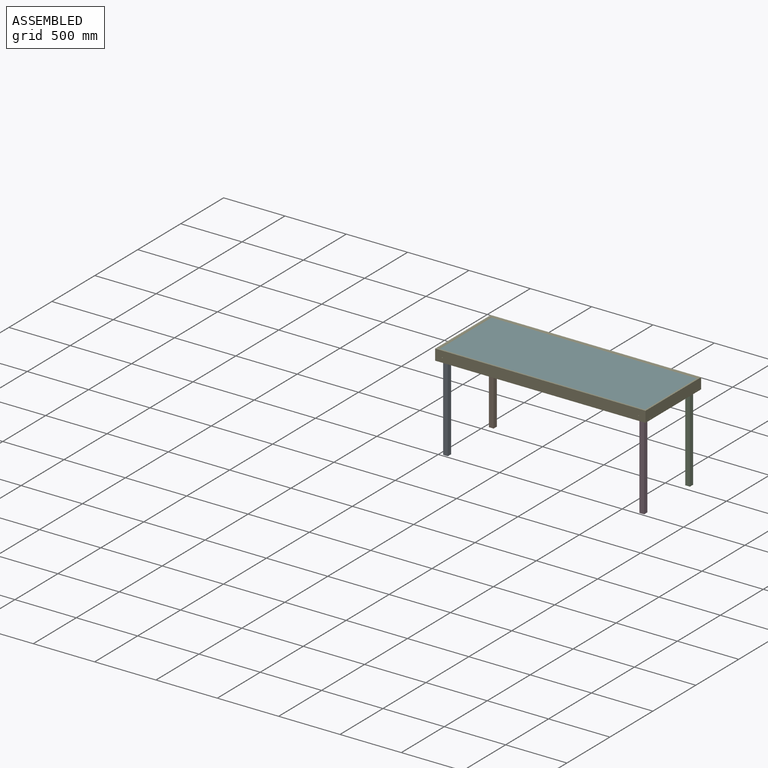
[diagram: assembled view]
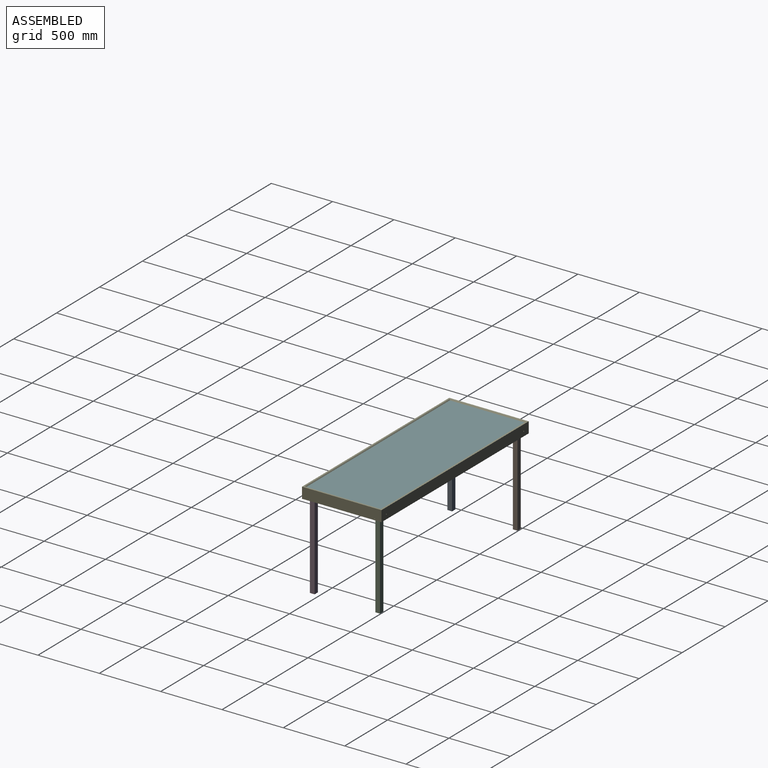
[diagram: assembled view, second angle]
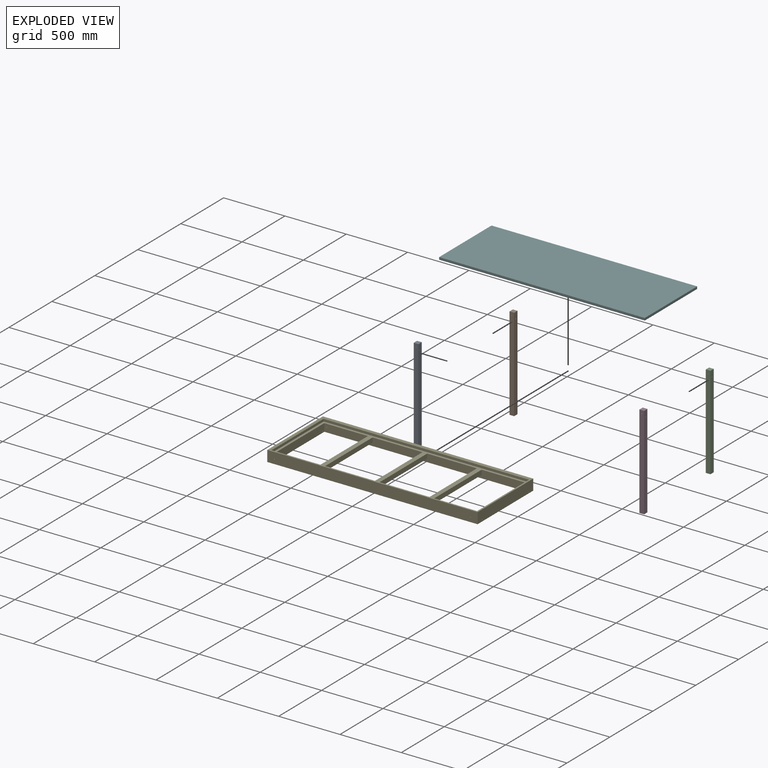
[diagram: exploded view]
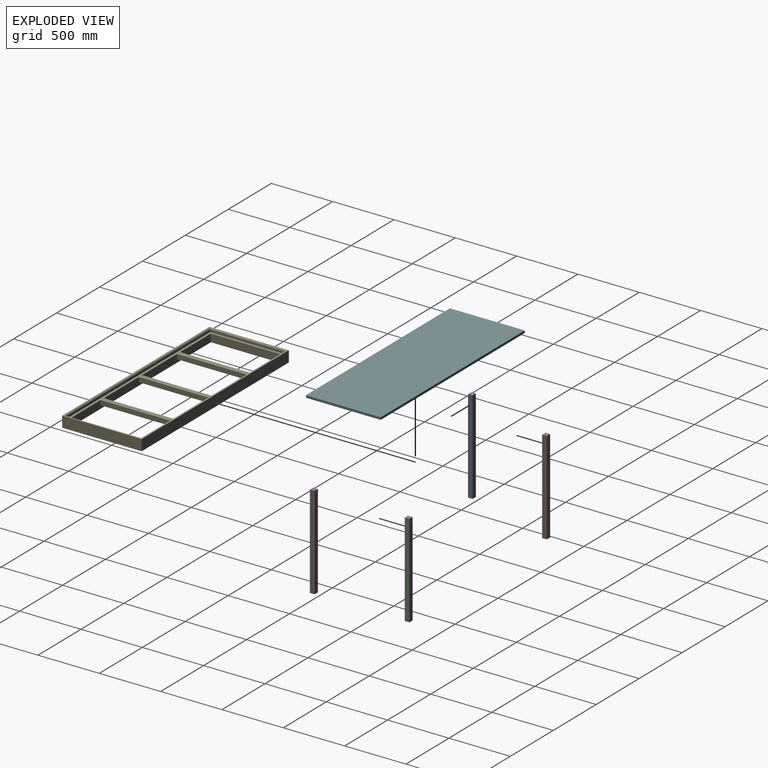
[diagram: exploded view, second angle]
ASSEMBLY  parts=6 mates=11
PART A: 8 faces, bbox 38.1x38.1x762 mm
  f0: plane 762x38.1mm, normal (0,-1,0), area 29000.5mm2, adj f1,f3,f4,f5,f6
  f1: plane 762x38.1mm, normal (1,0,0), area 29000.5mm2, adj f0,f2,f4,f5,f7
  f2: plane 762x38.1mm, normal (0,1,0), area 29000.5mm2, adj f1,f3,f4,f5,f6
  f3: plane 762x38.1mm, normal (-1,0,0), area 29000.5mm2, adj f0,f2,f4,f5,f7
  f4: plane 38.1x38.1mm, normal (0,0,-1), area 1451.6mm2, adj f0,f1,f2,f3
  f5: plane 38.1x38.1mm, normal (0,0,1), area 1451.6mm2, adj f0,f1,f2,f3
  f6: cylinder r=3.17mm len=38.1mm, axis (0,-1,0), area 760.1mm2, adj f0,f2
  f7: cylinder r=3.17mm len=38.1mm, axis (1,0,0), area 760.1mm2, adj f1,f3
PART B: same geometry as A
PART C: same geometry as A
PART D: same geometry as A
PART E: 36 faces, bbox 1714.5x647.7x88.9 mm
  f0: plane 1638.3x63.5mm, normal (0,-1,0), area 99613.9mm2, adj f10,f11,f13,f14,f15,f16,f17,f18
  f1: plane 609.6x19.05mm, normal (-1,0,0), area 11612.9mm2, adj f2,f8,f14,f33
  f2: plane 1676.4x19.05mm, normal (0,1,0), area 31935.4mm2, adj f1,f3,f14,f35
  f3: plane 609.6x19.05mm, normal (1,0,0), area 11612.9mm2, adj f2,f8,f14,f34
  f4: plane 1714.5x88.9mm, normal (0,-1,0), area 152355.7mm2, adj f5,f7,f9,f10,f24,f25
  f5: plane 647.7x88.9mm, normal (1,0,0), area 57517.2mm2, adj f4,f6,f9,f10,f30,f31
  f6: plane 1714.5x88.9mm, normal (0,1,0), area 152355.7mm2, adj f5,f7,f9,f10,f26,f27
  f7: plane 647.7x88.9mm, normal (-1,0,0), area 57517.2mm2, adj f4,f6,f9,f10,f28,f29
  f8: plane 1676.4x19.05mm, normal (0,-1,0), area 31935.4mm2, adj f1,f3,f14,f32
  f9: plane 1714.5x647.7mm, normal (0,0,1), area 59354.7mm2, adj f4,f5,f6,f7,f32,f33,f34,f35
  f10: plane 1714.5x647.7mm, normal (0,0,-1), area 174193.2mm2, adj f0,f4,f5,f6,f7,f11,f12,f13
  f11: plane 571.5x63.5mm, normal (1,0,0), area 36226.9mm2, adj f0,f10,f12,f14,f28,f29
  f12: plane 1638.3x63.5mm, normal (0,1,0), area 99613.9mm2, adj f10,f11,f13,f14,f15,f16,f17,f18
  f13: plane 571.5x63.5mm, normal (-1,0,0), area 36226.9mm2, adj f0,f10,f12,f14,f30,f31
  f14: plane 1676.4x609.6mm, normal (0,0,1), area 150967.4mm2, adj f0,f1,f2,f3,f8,f11,f12,f13
  f15: plane 571.5x38.1mm, normal (1,0,0), area 21774.1mm2, adj f0,f12,f14,f17
  f16: plane 571.5x38.1mm, normal (-1,0,0), area 21774.1mm2, adj f0,f12,f14,f17
  f17: plane 571.5x38.1mm, normal (0,0,-1), area 21774.1mm2, adj f0,f12,f15,f16
  f18: plane 571.5x38.1mm, normal (1,0,0), area 21774.1mm2, adj f0,f12,f14,f20
  f19: plane 571.5x38.1mm, normal (-1,0,0), area 21774.1mm2, adj f0,f12,f14,f20
  f20: plane 571.5x38.1mm, normal (0,0,-1), area 21774.2mm2, adj f0,f12,f18,f19
  f21: plane 571.5x38.1mm, normal (1,0,0), area 21774.1mm2, adj f0,f12,f14,f23
  f22: plane 571.5x38.1mm, normal (-1,0,0), area 21774.1mm2, adj f0,f12,f14,f23
  f23: plane 571.5x38.1mm, normal (0,0,-1), area 21774.2mm2, adj f0,f12,f21,f22
  f24: cylinder r=3.17mm len=38.1mm, axis (0,-1,0), area 760.1mm2, adj f4,f12
  f25: cylinder r=3.17mm len=38.1mm, axis (0,-1,0), area 760.1mm2, adj f4,f12
  f26: cylinder r=3.17mm len=38.1mm, axis (0,-1,0), area 760.1mm2, adj f0,f6
  f27: cylinder r=3.17mm len=38.1mm, axis (0,-1,0), area 760.1mm2, adj f0,f6
  f28: cylinder r=3.17mm len=38.1mm, axis (-1,0,0), area 760.1mm2, adj f7,f11
  f29: cylinder r=3.17mm len=38.1mm, axis (-1,0,0), area 760.1mm2, adj f7,f11
  f30: cylinder r=3.17mm len=38.1mm, axis (1,0,0), area 760.1mm2, adj f5,f13
  f31: cylinder r=3.17mm len=38.1mm, axis (1,0,0), area 760.1mm2, adj f5,f13
  f32: plane 1689.1x6.35mm, normal (0,-0.71,0.71), area 15111.5mm2, adj f8,f9,f33,f34
  f33: plane 622.3x6.35mm, normal (-0.71,0,0.71), area 5531.4mm2, adj f1,f9,f32,f35
  f34: plane 622.3x6.35mm, normal (0.71,0,0.71), area 5531.4mm2, adj f3,f9,f32,f35
  f35: plane 1689.1x6.35mm, normal (0,0.71,0.71), area 15111.5mm2, adj f2,f9,f33,f34
PART F: 6 faces, bbox 1676.4x609.6x19.1 mm
  f0: plane 1676.4x19.05mm, normal (0,-1,0), area 31935.4mm2, adj f1,f3,f4,f5
  f1: plane 609.6x19.05mm, normal (1,0,0), area 11612.9mm2, adj f0,f2,f4,f5
  f2: plane 1676.4x19.05mm, normal (0,1,0), area 31935.4mm2, adj f1,f3,f4,f5
  f3: plane 609.6x19.05mm, normal (-1,0,0), area 11612.9mm2, adj f0,f2,f4,f5
  f4: plane 1676.4x609.6mm, normal (0,0,1), area 1021933.4mm2, adj f0,f1,f2,f3
  f5: plane 1676.4x609.6mm, normal (0,0,-1), area 1021933.4mm2, adj f0,f1,f2,f3
PLACE A t=(-913.46,-520.11,586.78)mm
PLACE B t=(-913.46,13.29,586.78)mm
PLACE C t=(686.74,13.29,586.78)mm
PLACE D t=(686.74,-520.11,586.78)mm
PLACE E t=(-113.36,-253.41,523.28)mm
PLACE F t=(-113.36,-253.41,586.78)mm
MATE slider D.f6 <-> E.f24  axis (0,-1,0) through (686.74,-539.16,561.38)mm
MATE cylindrical C.f7 <-> E.f29  axis (1,0,0) through (705.79,13.29,535.98)mm
MATE cylindrical E.f24 <-> C.f6  axis (0,-1,0) through (686.74,32.34,561.38)mm
MATE cylindrical B.f6 <-> E.f25  axis (0,1,0) through (-913.46,32.34,561.38)mm
MATE parallel E.f1 <-> F.f1  axis (-1,0,0) through (724.84,-253.41,596.31)mm
MATE cylindrical A.f7 <-> E.f28  axis (-1,0,0) through (-932.51,-520.11,535.98)mm
MATE parallel F.f0 <-> E.f2  axis (0,-1,0) through (-113.36,-558.21,596.31)mm
MATE cylindrical D.f7 <-> E.f28  axis (-1,0,0) through (667.69,-520.11,535.98)mm
MATE cylindrical E.f29 <-> B.f7  axis (1,0,0) through (-932.51,13.29,535.98)mm
MATE parallel E.f14 <-> F.f5  axis (0,0,1) through (-113.36,-253.41,586.78)mm
MATE cylindrical A.f6 <-> E.f25  axis (0,1,0) through (-913.46,-501.06,561.38)mm
